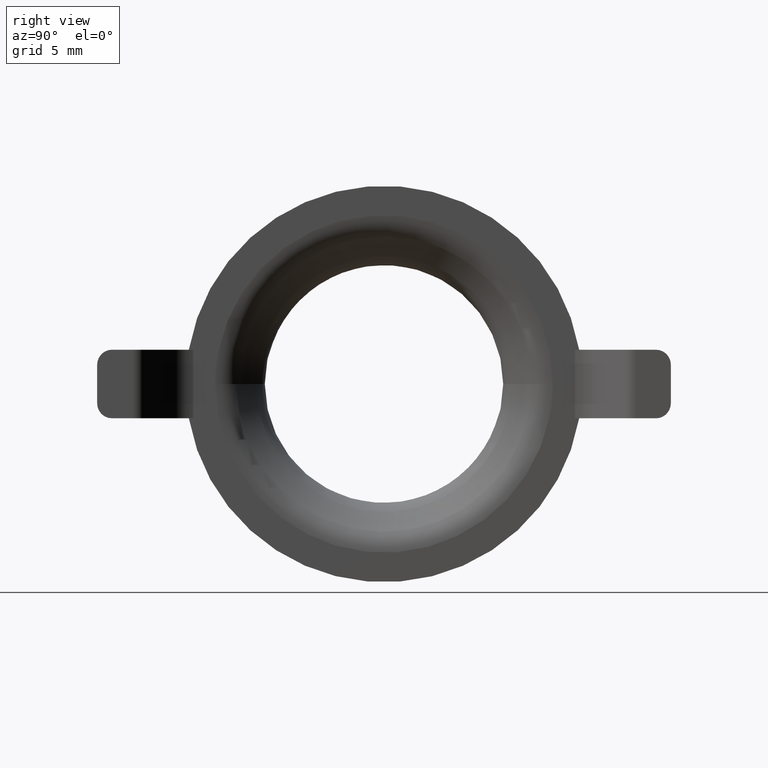
[diagram: clean part render]
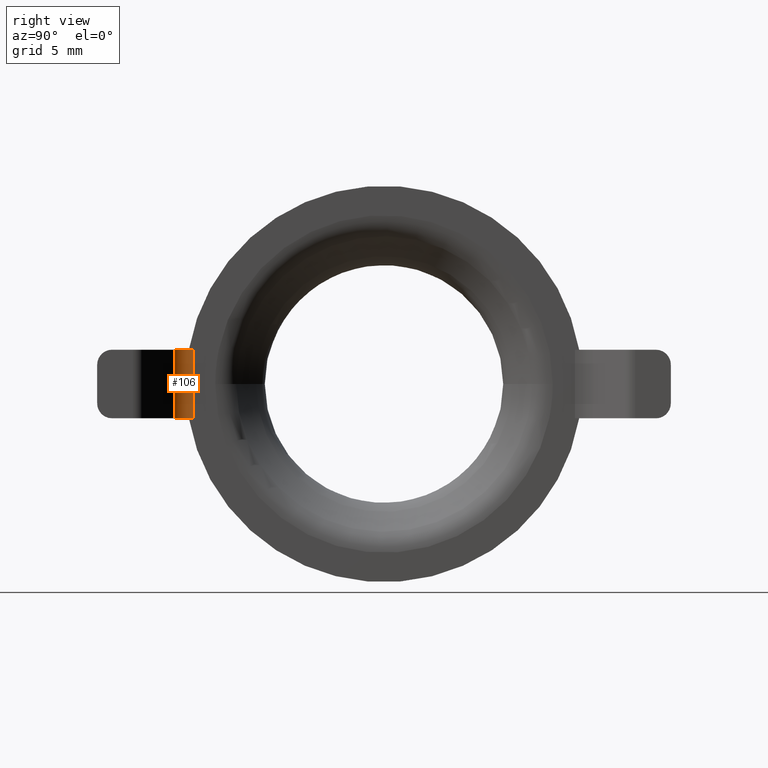
[diagram: same view with one face highlighted and labeled with its STEP entity id]
A machine part, right view. The second image highlights one B-rep face of the part: STEP entity #106.
In plain terms, the highlighted cylindrical surface (edge-blend (fillet) strip) has radius 2 mm, axis along (0, 0, -1).
Its self-contained STEP definition (entity closure, byte-faithful):
#106=ADVANCED_FACE('',(#161),#529,.F.);
#161=FACE_OUTER_BOUND('',#217,.F.);
#217=EDGE_LOOP('',(#477,#478,#479,#480));
#477=ORIENTED_EDGE('',*,*,#834,.F.);
#478=ORIENTED_EDGE('',*,*,#854,.T.);
#479=ORIENTED_EDGE('',*,*,#732,.T.);
#480=ORIENTED_EDGE('',*,*,#853,.T.);
#529=CYLINDRICAL_SURFACE('',#1153,2.);
#552=LINE('',#1642,#632);
#610=LINE('',#1744,#690);
#632=VECTOR('',#1200,4.59999999999999);
#690=VECTOR('',#1346,4.60000000000002);
#732=EDGE_CURVE('',#976,#978,#552,.T.);
#834=EDGE_CURVE('',#926,#925,#610,.T.);
#853=EDGE_CURVE('',#978,#925,#917,.T.);
#854=EDGE_CURVE('',#926,#976,#918,.T.);
#917=CIRCLE('',#1104,2.);
#918=CIRCLE('',#1105,2.);
#925=VERTEX_POINT('',#1497);
#926=VERTEX_POINT('',#1498);
#976=VERTEX_POINT('',#1548);
#978=VERTEX_POINT('',#1550);
#1104=AXIS2_PLACEMENT_3D('',#1763,#1369,#1370);
#1105=AXIS2_PLACEMENT_3D('',#1764,#1371,#1372);
#1153=AXIS2_PLACEMENT_3D('',#1812,#1467,#1468);
#1200=DIRECTION('',(0.,0.,-1.));
#1346=DIRECTION('',(0.,0.,-1.));
#1369=DIRECTION('',(0.,0.,1.));
#1370=DIRECTION('',(-0.994999999999997,-0.0998749217772172,0.));
#1371=DIRECTION('',(0.,0.,-1.));
#1372=DIRECTION('',(-0.70710678118654,-0.707106781186555,0.));
#1467=DIRECTION('',(0.,0.,-1.));
#1468=DIRECTION('',(-0.70710678118654,-0.707106781186555,0.));
#1497=CARTESIAN_POINT('',(90.7407861523231,-64.0257828648199,126.200000055078));
#1498=CARTESIAN_POINT('',(90.7407861523231,-64.0257828648199,130.800000055078));
#1548=CARTESIAN_POINT('',(90.1649997146961,-62.8113191460013,130.800000055078));
#1550=CARTESIAN_POINT('',(90.1649997146961,-62.8113191460013,126.200000055078));
#1642=CARTESIAN_POINT('',(90.1649997146962,-62.8113191460013,130.800000055078));
#1744=CARTESIAN_POINT('',(90.7407861523231,-64.02578286482,130.800000055078));
#1763=CARTESIAN_POINT('',(92.1549997146961,-62.6115693024468,126.200000055078));
#1764=CARTESIAN_POINT('',(92.1549997146961,-62.6115693024468,130.800000055078));
#1812=CARTESIAN_POINT('',(92.1549997146961,-62.6115693024468,142.525000055078));